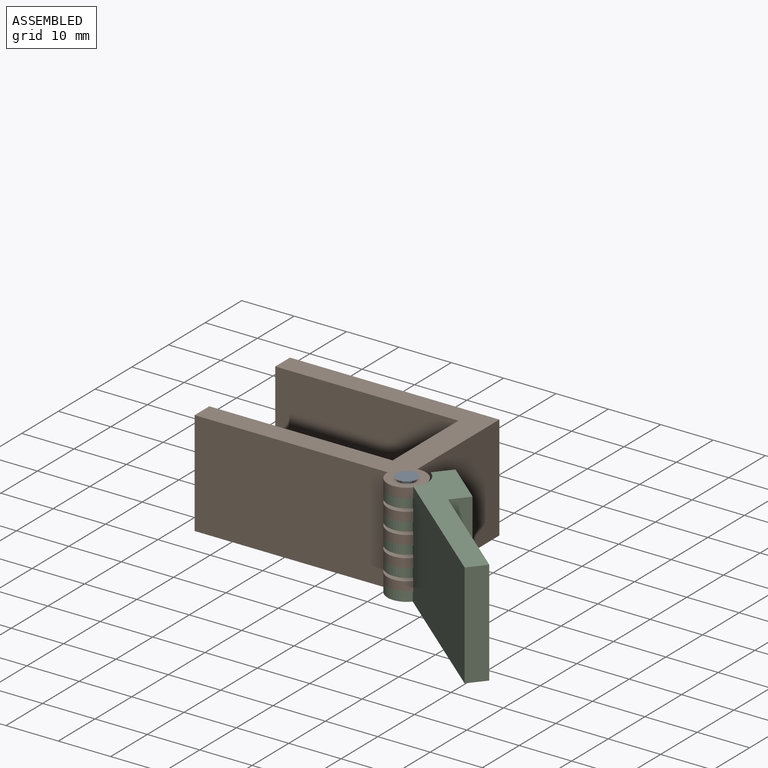
[diagram: assembled view]
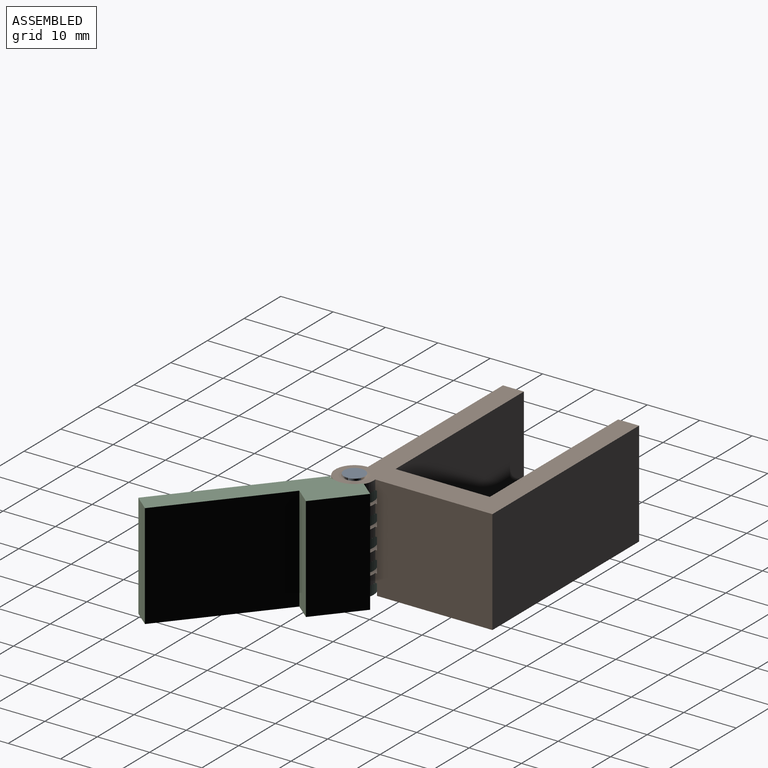
[diagram: assembled view, second angle]
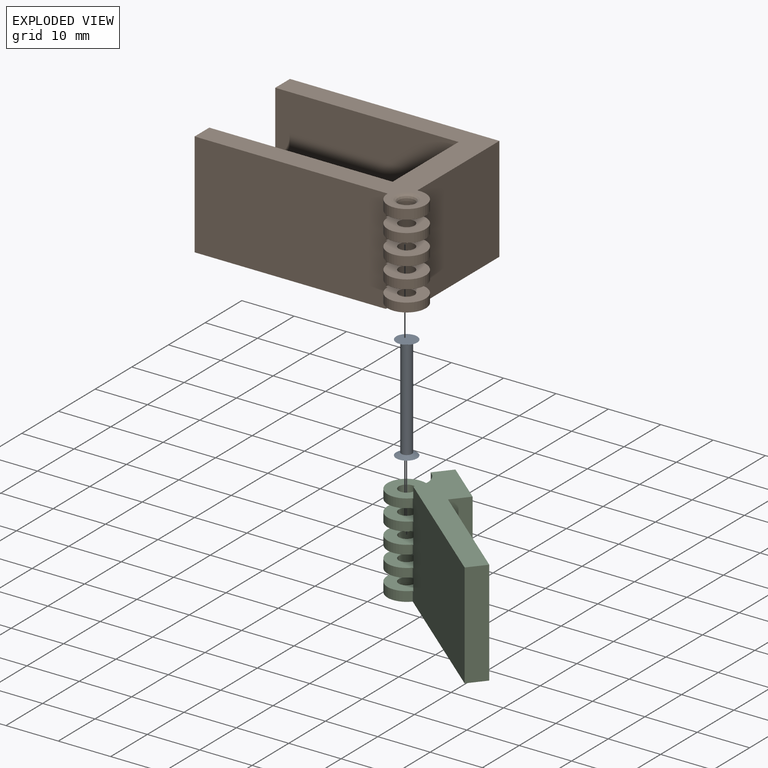
[diagram: exploded view]
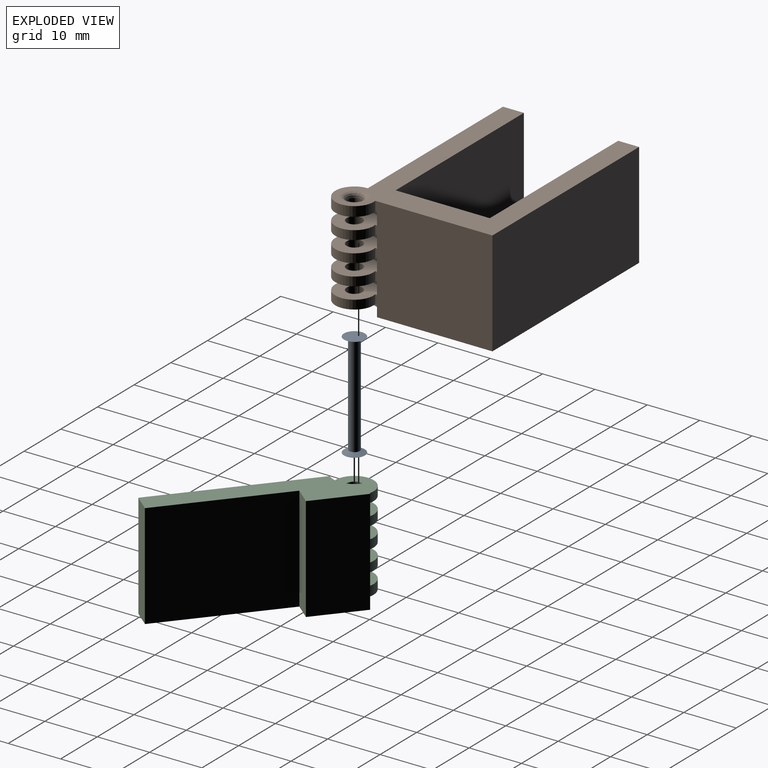
[diagram: exploded view, second angle]
ASSEMBLY  parts=3 mates=2
PART A: 5 faces, bbox 4x4x20 mm
  f0: cylinder r=1mm len=19mm, axis (0,0,-1), area 119.4mm2, adj f2,f4
  f1: plane 4x4mm, normal (0,0,1), area 12.6mm2, adj f2
  f2: cone r=1mm half-angle=63.4deg, axis (0,0,1), area 10.5mm2, adj f0,f1
  f3: plane 4x4mm, normal (0,0,-1), area 12.6mm2, adj f4
  f4: cone r=1mm half-angle=63.4deg, axis (0,0,-1), area 10.5mm2, adj f0,f3
PART B: 35 faces, bbox 44.2x29.7x20 mm
  f0: cylinder r=3.65mm len=7.3mm, axis (0,0,-1), area 30.1mm2, adj f4,f5,f26,f27
  f1: cylinder r=3.65mm len=7.3mm, axis (0,0,-1), area 30.1mm2, adj f4,f5,f24,f25
  f2: cylinder r=3.65mm len=7.3mm, axis (0,0,-1), area 30.1mm2, adj f4,f5,f22,f23
  f3: cylinder r=3.65mm len=7.3mm, axis (0,0,-1), area 30.1mm2, adj f4,f5,f20,f21
  f4: plane 22.38x20mm, normal (-1,0,0), area 443.7mm2, adj f0,f1,f2,f3,f8,f9,f13,f14
  f5: plane 36.85x20mm, normal (0,-1,0), area 733mm2, adj f0,f1,f2,f3,f7,f8,f9,f14
  f6: plane 35x20mm, normal (0,1,0), area 700mm2, adj f7,f8,f9,f10
  f7: plane 20x4mm, normal (1,0,0), area 80mm2, adj f5,f6,f8,f9
  f8: plane 44.16x29.66mm, normal (0,0,-1), area 423.6mm2, adj f4,f5,f6,f7,f10,f11,f12,f13
  f9: plane 40x26mm, normal (0,0,1), area 399.4mm2, adj f4,f5,f6,f7,f10,f11,f12,f13
  f10: plane 20x18mm, normal (1,0,0), area 360mm2, adj f6,f8,f9,f11
  f11: plane 35x20mm, normal (0,-1,0), area 700mm2, adj f8,f9,f10,f12
  f12: plane 20x4mm, normal (1,0,0), area 80mm2, adj f8,f9,f11,f13
  f13: plane 40x20mm, normal (0,1,0), area 800mm2, adj f4,f8,f9,f12
  f14: cylinder r=4mm len=3.97mm, axis (0,0,1), area 13.3mm2, adj f4,f5,f27,f28
  f15: cylinder r=4mm len=3.97mm, axis (0,0,1), area 13.3mm2, adj f4,f5,f25,f26
  f16: cylinder r=4mm len=3.97mm, axis (0,0,1), area 13.3mm2, adj f4,f5,f23,f24
  f17: cylinder r=4mm len=3.97mm, axis (0,0,1), area 13.3mm2, adj f4,f5,f21,f22
  f18: cylinder r=4mm len=3.97mm, axis (0,0,1), area 12.4mm2, adj f4,f5,f9,f20
  f19: cylinder r=3.65mm len=7.3mm, axis (0,0,-1), area 32.7mm2, adj f4,f5,f8,f28
  f20: plane 7.65x7.62mm, normal (0,0,1), area 36.7mm2, adj f3,f4,f5,f18,f33
  f21: plane 7.65x7.62mm, normal (0,0,-1), area 36.7mm2, adj f3,f4,f5,f17,f33
  f22: plane 7.65x7.62mm, normal (0,0,1), area 36.7mm2, adj f2,f4,f5,f17,f32
  f23: plane 7.65x7.62mm, normal (0,0,-1), area 36.7mm2, adj f2,f4,f5,f16,f32
  f24: plane 7.65x7.62mm, normal (0,0,1), area 36.7mm2, adj f1,f4,f5,f16,f31
  f25: plane 7.65x7.62mm, normal (0,0,-1), area 36.7mm2, adj f1,f4,f5,f15,f31
  f26: plane 7.65x7.62mm, normal (0,0,1), area 36.7mm2, adj f0,f4,f5,f15,f30
  f27: plane 7.65x7.62mm, normal (0,0,-1), area 36.7mm2, adj f0,f4,f5,f14,f30
  f28: plane 7.65x7.62mm, normal (0,0,1), area 36.7mm2, adj f4,f5,f14,f19,f29
  f29: cylinder r=1.5mm len=3mm, axis (0,0,1), area 8mm2, adj f28,f34
  f30: cylinder r=1.5mm len=3mm, axis (0,0,1), area 16mm2, adj f26,f27
  f31: cylinder r=1.5mm len=3mm, axis (0,0,1), area 16mm2, adj f24,f25
  f32: cylinder r=1.5mm len=3mm, axis (0,0,1), area 16mm2, adj f22,f23
  f33: cylinder r=1.5mm len=3mm, axis (0,0,1), area 16mm2, adj f20,f21
  f34: bspline ~5x5mm, area 18.8mm2, adj f8,f29
PART C: 43 faces, bbox 33x28.9x20 mm
  f0: cylinder r=3.65mm len=7.3mm, axis (0,0,1), area 29.2mm2, adj f3,f19,f20,f33
  f1: cylinder r=3.65mm len=7.3mm, axis (0,0,1), area 29.2mm2, adj f3,f17,f18,f37
  f2: cylinder r=3.65mm len=7.3mm, axis (0,0,1), area 29.2mm2, adj f3,f15,f16,f39
  f3: plane 24.02x20.15mm, normal (0.64,-0.77,0), area 623mm2, adj f0,f1,f2,f4,f5,f6,f8,f9
  f4: plane 28.88x27.12mm, normal (0,0,-1), area 169mm2, adj f3,f5,f7,f14,f30,f31,f40,f42
  f5: plane 20x3.06mm, normal (-0.77,-0.64,0), area 80mm2, adj f3,f4,f6,f7
  f6: plane 33.04x28.89mm, normal (0,0,1), area 193.5mm2, adj f3,f5,f7,f8,f29,f30,f31,f41
  f7: plane 20x19.15mm, normal (-0.64,0.77,0), area 500mm2, adj f4,f5,f6,f30
  f8: cylinder r=3.65mm len=7.3mm, axis (0,0,1), area 31.8mm2, adj f3,f6,f23,f41
  f9: cylinder r=3.65mm len=7.3mm, axis (0,0,1), area 29.2mm2, adj f3,f21,f22,f35
  f10: cylinder r=4mm len=5.64mm, axis (0,0,-1), area 14.5mm2, adj f3,f19,f23,f32
  f11: cylinder r=4mm len=5.64mm, axis (0,0,-1), area 14.5mm2, adj f3,f20,f21,f34
  f12: cylinder r=4mm len=5.64mm, axis (0,0,-1), area 14.5mm2, adj f3,f17,f22,f36
  f13: cylinder r=4mm len=5.64mm, axis (0,0,-1), area 14.5mm2, adj f3,f15,f18,f38
  f14: cylinder r=4mm len=5.64mm, axis (0,0,-1), area 13.5mm2, adj f3,f4,f16,f40
  f15: plane 7.65x7.3mm, normal (0,0,1), area 37mm2, adj f2,f3,f13,f28,f38,f39,f42
  f16: plane 7.65x7.3mm, normal (0,0,-1), area 37mm2, adj f2,f3,f14,f28,f39,f40,f42
  f17: plane 7.65x7.3mm, normal (0,0,1), area 37mm2, adj f1,f3,f12,f27,f36,f37,f42
  f18: plane 7.65x7.3mm, normal (0,0,-1), area 37mm2, adj f1,f3,f13,f27,f37,f38,f42
  f19: plane 7.65x7.3mm, normal (0,0,1), area 37mm2, adj f0,f3,f10,f26,f32,f33,f42
  f20: plane 7.65x7.3mm, normal (0,0,-1), area 37mm2, adj f0,f3,f11,f26,f33,f34,f42
  f21: plane 7.65x7.3mm, normal (0,0,1), area 37mm2, adj f3,f9,f11,f25,f34,f35,f42
  f22: plane 7.65x7.3mm, normal (0,0,-1), area 37mm2, adj f3,f9,f12,f25,f35,f36,f42
  f23: plane 7.65x7.3mm, normal (0,0,-1), area 37mm2, adj f3,f8,f10,f24,f32,f41,f42
  f24: cylinder r=1.5mm len=3mm, axis (0,0,1), area 8mm2, adj f23,f29
  f25: cylinder r=1.5mm len=3mm, axis (0,0,1), area 16mm2, adj f21,f22
  f26: cylinder r=1.5mm len=3mm, axis (0,0,1), area 16mm2, adj f19,f20
  f27: cylinder r=1.5mm len=3mm, axis (0,0,1), area 16mm2, adj f17,f18
  f28: cylinder r=1.5mm len=3mm, axis (0,0,1), area 16mm2, adj f15,f16
  f29: bspline ~5.1x5.1mm, area 18.8mm2, adj f6,f24
  f30: plane 20x3.06mm, normal (-0.77,-0.64,0), area 80mm2, adj f4,f6,f7,f31
  f31: plane 20x7.97mm, normal (-0.64,0.77,0), area 208mm2, adj f4,f6,f30,f42
  f32: plane 2.3x0.31mm, normal (0.64,-0.77,0), area 0.9mm2, adj f10,f19,f23,f42
  f33: plane 1.7x0.31mm, normal (0.64,-0.77,0), area 0.7mm2, adj f0,f19,f20,f42
  f34: plane 2.3x0.31mm, normal (0.64,-0.77,0), area 0.9mm2, adj f11,f20,f21,f42
  f35: plane 1.7x0.31mm, normal (0.64,-0.77,0), area 0.7mm2, adj f9,f21,f22,f42
  f36: plane 2.3x0.31mm, normal (0.64,-0.77,0), area 0.9mm2, adj f12,f17,f22,f42
  f37: plane 1.7x0.31mm, normal (0.64,-0.77,0), area 0.7mm2, adj f1,f17,f18,f42
  f38: plane 2.3x0.31mm, normal (0.64,-0.77,0), area 0.9mm2, adj f13,f15,f18,f42
  f39: plane 1.7x0.31mm, normal (0.64,-0.77,0), area 0.7mm2, adj f2,f15,f16,f42
  f40: plane 2.15x0.31mm, normal (0.64,-0.77,0), area 0.9mm2, adj f4,f14,f16,f42
  f41: plane 1.85x0.31mm, normal (0.64,-0.77,0), area 0.7mm2, adj f6,f8,f23,f42
  f42: plane 20x3.33mm, normal (0.77,0.64,0), area 83mm2, adj f4,f6,f15,f16,f17,f18,f19,f20
PLACE A rot(axis=(0,-1,0),180deg) t=(-55.51,-6.4,1.42)mm
PLACE B rot(axis=(0,1,0),180deg) t=(-55.51,-6.4,1.12)mm fixed
PLACE C rot(axis=(0,1,0),180deg) t=(-55.51,-6.4,1.42)mm
MATE revolute B.f19 <-> C.f8  axis (0,0,-1) through (-35.01,3.6,-0.73)mm
MATE fastened C.f10 <-> A.f4  axis (0,0,-1) through (-35.01,3.6,-18.58)mm
